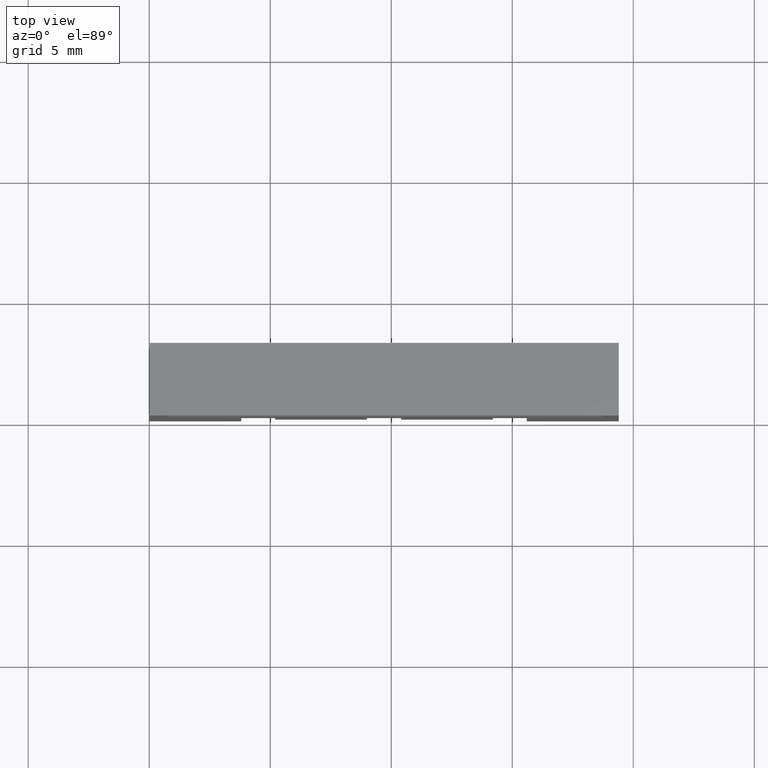
[diagram: clean part render]
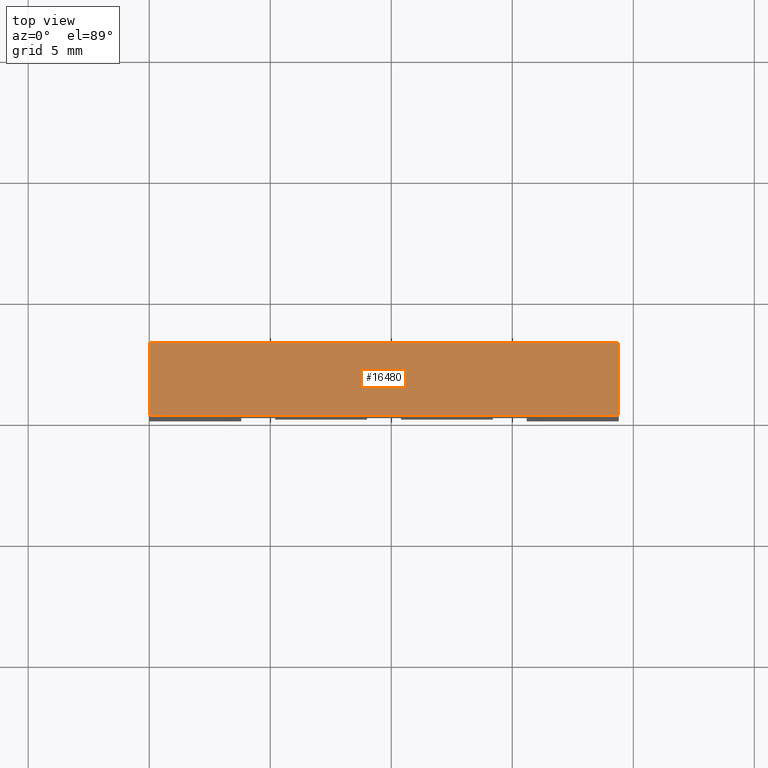
[diagram: same view with one face highlighted and labeled with its STEP entity id]
A machine part, top view. The second image highlights one B-rep face of the part: STEP entity #16480.
In plain terms, the highlighted planar face has unit normal (0, 0, 1).
Its self-contained STEP definition (entity closure, byte-faithful):
#1020=CARTESIAN_POINT('',(5.60716722170487,-9.87499999999744,
58.3599999999988));
#1030=VERTEX_POINT('',#1020);
#1060=CARTESIAN_POINT('',(5.60716722170487,-9.87499999999744,
97.3199999999975));
#1070=DIRECTION('',(0.,0.,-1.));
#1080=VECTOR('',#1070,1.);
#1090=LINE('',#1060,#1080);
#1100=CARTESIAN_POINT('',(5.60716722170487,-9.87499999999744,
38.9599999999988));
#1110=VERTEX_POINT('',#1100);
#1120=EDGE_CURVE('',#1030,#1110,#1090,.T.);
#2470=CARTESIAN_POINT('',(2.60716722170486,-9.87499999999744,
38.9599999999988));
#2480=VERTEX_POINT('',#2470);
#2510=CARTESIAN_POINT('',(2.60716722170486,-9.87499999999744,
97.3199999999975));
#2520=DIRECTION('',(0.,0.,1.));
#2530=VECTOR('',#2520,1.);
#2540=LINE('',#2510,#2530);
#2550=CARTESIAN_POINT('',(2.60716722170486,-9.87499999999744,
58.3599999999988));
#2560=VERTEX_POINT('',#2550);
#2570=EDGE_CURVE('',#2480,#2560,#2540,.T.);
#15950=CARTESIAN_POINT('',(8.21433444339023,-9.87499999999744,
58.3599999999988));
#15960=DIRECTION('',(1.,0.,0.));
#15970=VECTOR('',#15960,1.);
#15980=LINE('',#15950,#15970);
#15990=EDGE_CURVE('',#2560,#1030,#15980,.T.);
#16200=CARTESIAN_POINT('',(8.21433444339023,-9.87499999999744,
38.9599999999988));
#16210=DIRECTION('',(1.,0.,0.));
#16220=VECTOR('',#16210,1.);
#16230=LINE('',#16200,#16220);
#16240=EDGE_CURVE('',#2480,#1110,#16230,.T.);
#16370=CARTESIAN_POINT('',(2.60716722170485,-9.87499999999744,
53.1599999999988));
#16380=DIRECTION('',(0.,1.,0.));
#16390=DIRECTION('',(0.,0.,1.));
#16400=AXIS2_PLACEMENT_3D('',#16370,#16380,#16390);
#16410=PLANE('',#16400);
#16420=ORIENTED_EDGE('',*,*,#2570,.T.);
#16430=ORIENTED_EDGE('',*,*,#16240,.F.);
#16440=ORIENTED_EDGE('',*,*,#1120,.T.);
#16450=ORIENTED_EDGE('',*,*,#15990,.T.);
#16460=EDGE_LOOP('',(#16450,#16440,#16430,#16420));
#16470=FACE_OUTER_BOUND('',#16460,.T.);
#16480=ADVANCED_FACE('',(#16470),#16410,.T.);